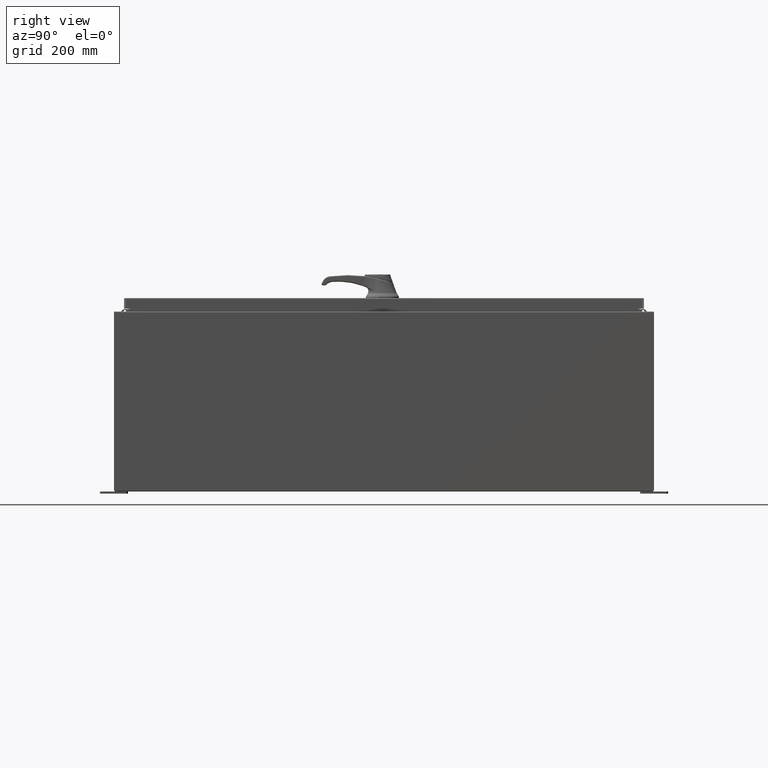
[diagram: clean part render]
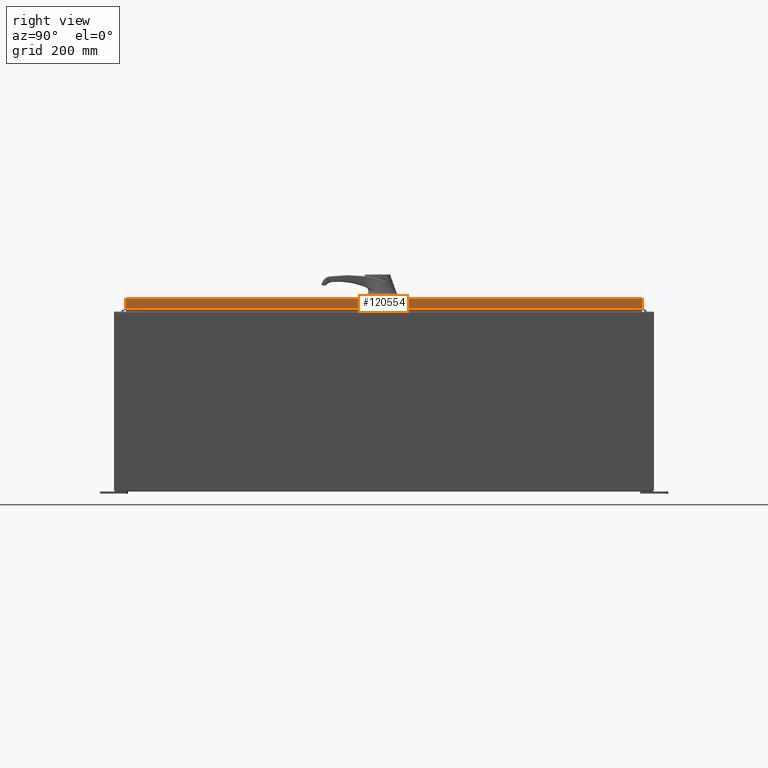
[diagram: same view with one face highlighted and labeled with its STEP entity id]
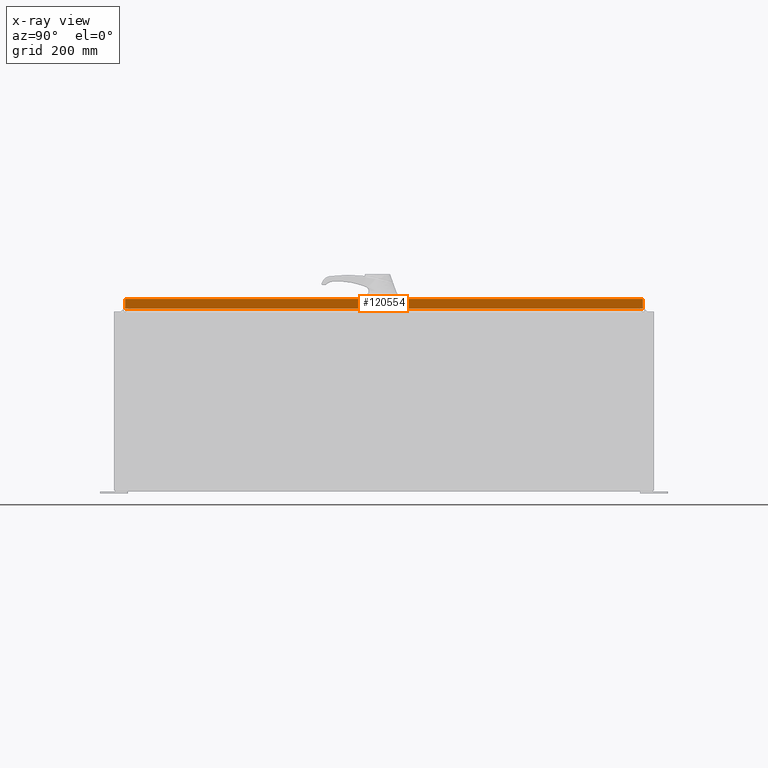
[diagram: x-ray of the same camera — body ghosted, the highlighted face saturated]
A machine part, right view. The second image highlights one B-rep face of the part: STEP entity #120554.
The next image is the same camera in x-ray: the body ghosted, the highlighted face saturated — about 0% of this face is hidden behind the body in this view.
In plain terms, the highlighted planar face has unit normal (1, 0, 0).
Its self-contained STEP definition (entity closure, byte-faithful):
#3508 = LINE ( 'NONE', #41223, #55378 ) ;
#5954 = CARTESIAN_POINT ( 'NONE',  ( 17.07799999999999900, 0.0000000000000000000, 4.350948112836224800E-014 ) ) ;
#8943 = VERTEX_POINT ( 'NONE', #81279 ) ;
#18971 = VERTEX_POINT ( 'NONE', #83393 ) ;
#20764 = CARTESIAN_POINT ( 'NONE',  ( 17.07800000000000300, 23.00515786437628000, -0.9376999999999997600 ) ) ;
#20802 = CARTESIAN_POINT ( 'NONE',  ( 17.07799999999999900, 23.00515786437627600, 2.041536398895824600E-013 ) ) ;
#27618 = LINE ( 'NONE', #38299, #107124 ) ;
#31849 = EDGE_CURVE ( 'NONE', #107373, #8943, #109021, .T. ) ;
#36665 = ORIENTED_EDGE ( 'NONE', *, *, #66666, .T. ) ;
#38299 = CARTESIAN_POINT ( 'NONE',  ( 17.07799999999999900, 0.0000000000000000000, -0.08770000000000008300 ) ) ;
#41223 = CARTESIAN_POINT ( 'NONE',  ( 17.07799999999999900, -23.00515786437626900, -0.07469999999999980800 ) ) ;
#52517 = DIRECTION ( 'NONE',  ( -2.532419924601866100E-015, -6.982962677686265900E-015, 1.000000000000000000 ) ) ;
#55378 = VECTOR ( 'NONE', #92932, 39.37007874015748100 ) ;
#56103 = EDGE_LOOP ( 'NONE', ( #90414, #117666, #79612, #36665 ) ) ;
#58032 = DIRECTION ( 'NONE',  ( 1.000000000000000000, 0.0000000000000000000, 2.532419924601866100E-015 ) ) ;
#60685 = CARTESIAN_POINT ( 'NONE',  ( 17.07800000000000300, -23.09400000000000100, -0.9376999999999997600 ) ) ;
#62695 = EDGE_CURVE ( 'NONE', #107373, #18971, #104497, .T. ) ;
#66666 = EDGE_CURVE ( 'NONE', #8943, #117813, #27618, .T. ) ;
#73679 = VECTOR ( 'NONE', #123266, 39.37007874015748100 ) ;
#79612 = ORIENTED_EDGE ( 'NONE', *, *, #31849, .T. ) ;
#81279 = CARTESIAN_POINT ( 'NONE',  ( 17.07799999999999900, 23.00515786437627200, -0.08770000000000008300 ) ) ;
#81406 = VECTOR ( 'NONE', #52517, 39.37007874015748100 ) ;
#83393 = CARTESIAN_POINT ( 'NONE',  ( 17.07800000000000300, -23.00515786437626200, -0.9376999999999997600 ) ) ;
#90414 = ORIENTED_EDGE ( 'NONE', *, *, #130632, .F. ) ;
#92932 = DIRECTION ( 'NONE',  ( -2.532419924601866100E-015, -6.982962677686265900E-015, 1.000000000000000000 ) ) ;
#100864 = DIRECTION ( 'NONE',  ( 0.0000000000000000000, -1.000000000000000000, 0.0000000000000000000 ) ) ;
#104497 = LINE ( 'NONE', #60685, #73679 ) ;
#105515 = AXIS2_PLACEMENT_3D ( 'NONE', #5954, #58032, #130582 ) ;
#107124 = VECTOR ( 'NONE', #100864, 39.37007874015748100 ) ;
#107373 = VERTEX_POINT ( 'NONE', #20764 ) ;
#109021 = LINE ( 'NONE', #20802, #81406 ) ;
#115493 = CARTESIAN_POINT ( 'NONE',  ( 17.07799999999999900, -23.00515786437626900, -0.08770000000000008300 ) ) ;
#117409 = FACE_OUTER_BOUND ( 'NONE', #56103, .T. ) ;
#117666 = ORIENTED_EDGE ( 'NONE', *, *, #62695, .F. ) ;
#117813 = VERTEX_POINT ( 'NONE', #115493 ) ;
#120554 = ADVANCED_FACE ( 'NONE', ( #117409 ), #130131, .T. ) ;
#123266 = DIRECTION ( 'NONE',  ( 0.0000000000000000000, -1.000000000000000000, 0.0000000000000000000 ) ) ;
#130131 = PLANE ( 'NONE',  #105515 ) ;
#130582 = DIRECTION ( 'NONE',  ( 2.532419924601866100E-015, 0.0000000000000000000, -1.000000000000000000 ) ) ;
#130632 = EDGE_CURVE ( 'NONE', #18971, #117813, #3508, .T. ) ;